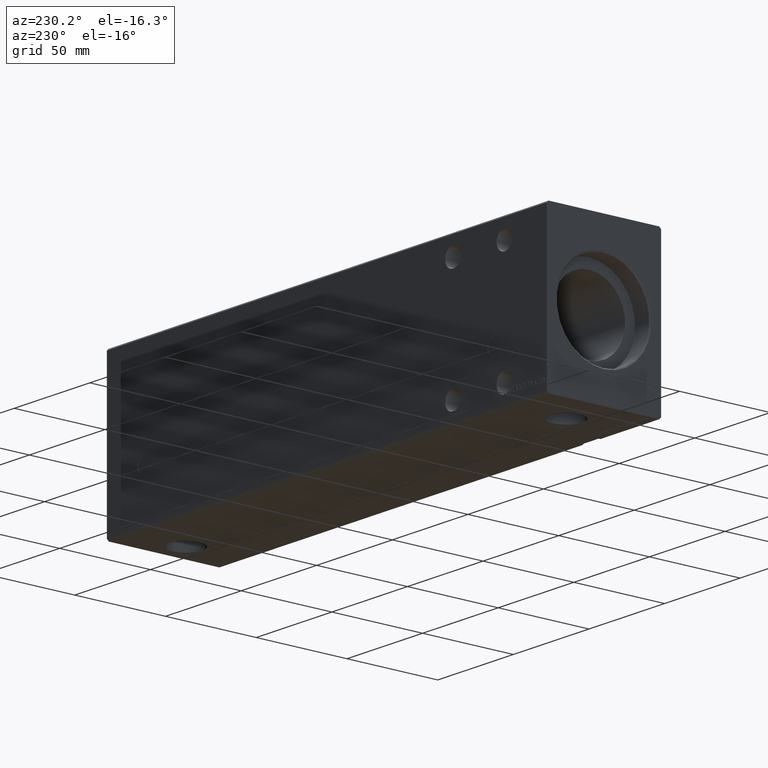
[diagram: clean part render]
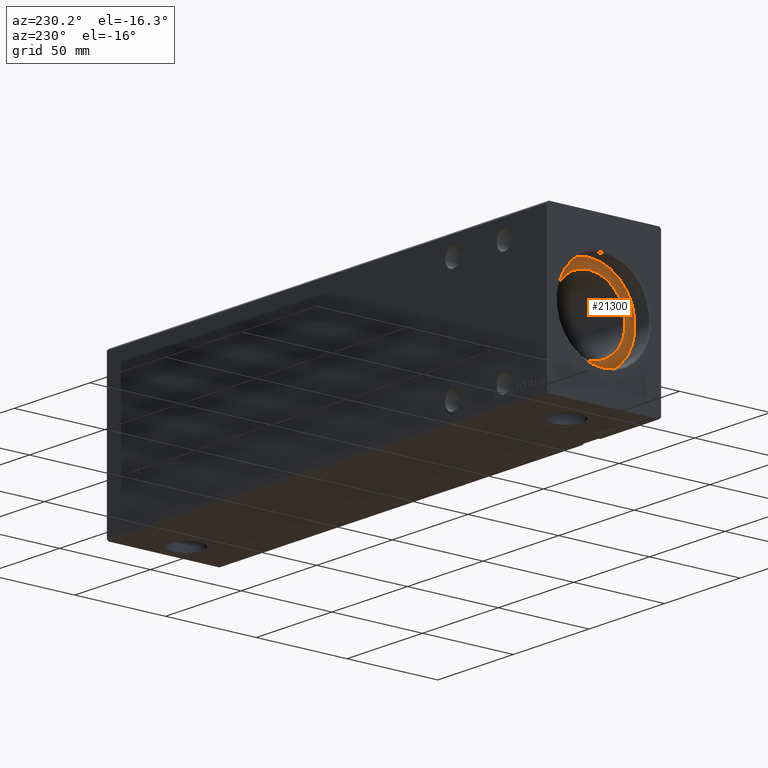
[diagram: same view with one face highlighted and labeled with its STEP entity id]
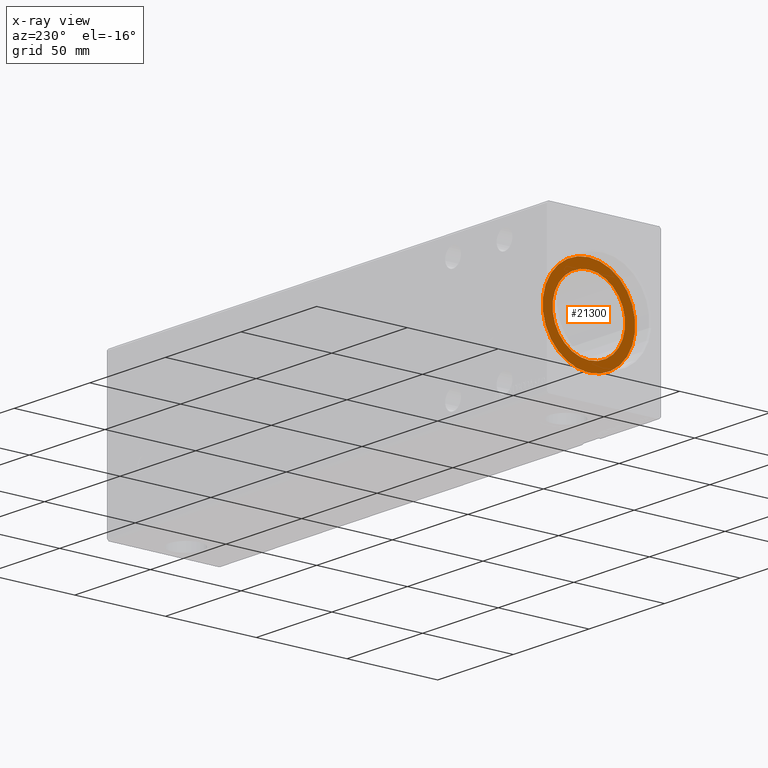
[diagram: x-ray of the same camera — body ghosted, the highlighted face saturated]
A machine part, auxiliary view. The second image highlights one B-rep face of the part: STEP entity #21300.
The next image is the same camera in x-ray: the body ghosted, the highlighted face saturated — about 0% of this face is hidden behind the body in this view.
In plain terms, the highlighted planar face has unit normal (-1, 0, 0).
Its self-contained STEP definition (entity closure, byte-faithful):
#396 = CARTESIAN_POINT ( 'NONE',  ( 10.00000000000000000, 3.122849337825750222E-15, -25.50000000000000000 ) ) ;
#622 = CARTESIAN_POINT ( 'NONE',  ( 10.00000000000000888, 0.000000000000000000, 20.00000000000000000 ) ) ;
#895 = DIRECTION ( 'NONE',  ( -1.000000000000000000, 0.000000000000000000, 0.000000000000000000 ) ) ;
#1317 = CIRCLE ( 'NONE', #1966, 25.50000000000000000 ) ;
#1690 = EDGE_CURVE ( 'NONE', #10067, #8087, #32352, .T. ) ;
#1966 = AXIS2_PLACEMENT_3D ( 'NONE', #13133, #895, #23253 ) ;
#2440 = CARTESIAN_POINT ( 'NONE',  ( 10.00000000000000000, 0.000000000000000000, 0.000000000000000000 ) ) ;
#2448 = EDGE_CURVE ( 'NONE', #12496, #40482, #35016, .T. ) ;
#4713 = CIRCLE ( 'NONE', #23888, 20.00000000000000000 ) ;
#4921 = EDGE_LOOP ( 'NONE', ( #35428, #13528 ) ) ;
#5194 = CARTESIAN_POINT ( 'NONE',  ( 10.00000000000000000, 0.000000000000000000, 25.50000000000000000 ) ) ;
#5714 = DIRECTION ( 'NONE',  ( 0.000000000000000000, 0.000000000000000000, 1.000000000000000000 ) ) ;
#8087 = VERTEX_POINT ( 'NONE', #622 ) ;
#9219 = DIRECTION ( 'NONE',  ( -1.000000000000000000, 0.000000000000000000, 0.000000000000000000 ) ) ;
#10067 = VERTEX_POINT ( 'NONE', #14042 ) ;
#11983 = FACE_OUTER_BOUND ( 'NONE', #4921, .T. ) ;
#12496 = VERTEX_POINT ( 'NONE', #5194 ) ;
#12730 = EDGE_CURVE ( 'NONE', #8087, #10067, #4713, .T. ) ;
#13133 = CARTESIAN_POINT ( 'NONE',  ( 10.00000000000000000, 0.000000000000000000, 0.000000000000000000 ) ) ;
#13528 = ORIENTED_EDGE ( 'NONE', *, *, #29887, .T. ) ;
#14042 = CARTESIAN_POINT ( 'NONE',  ( 10.00000000000000888, 2.449293598294706513E-15, -20.00000000000000000 ) ) ;
#15077 = DIRECTION ( 'NONE',  ( 0.000000000000000000, 0.000000000000000000, 1.000000000000000000 ) ) ;
#16316 = ORIENTED_EDGE ( 'NONE', *, *, #1690, .F. ) ;
#16964 = DIRECTION ( 'NONE',  ( -1.000000000000000000, 0.000000000000000000, 0.000000000000000000 ) ) ;
#20844 = DIRECTION ( 'NONE',  ( 0.000000000000000000, 0.000000000000000000, 1.000000000000000000 ) ) ;
#21300 = ADVANCED_FACE ( 'NONE', ( #28105, #11983 ), #30605, .T. ) ;
#21508 = EDGE_LOOP ( 'NONE', ( #36581, #16316 ) ) ;
#23253 = DIRECTION ( 'NONE',  ( 0.000000000000000000, 0.000000000000000000, 1.000000000000000000 ) ) ;
#23888 = AXIS2_PLACEMENT_3D ( 'NONE', #38713, #16964, #26079 ) ;
#26079 = DIRECTION ( 'NONE',  ( 0.000000000000000000, 0.000000000000000000, 1.000000000000000000 ) ) ;
#27050 = CARTESIAN_POINT ( 'NONE',  ( 10.00000000000000888, 0.000000000000000000, 0.000000000000000000 ) ) ;
#28105 = FACE_BOUND ( 'NONE', #21508, .T. ) ;
#29887 = EDGE_CURVE ( 'NONE', #40482, #12496, #1317, .T. ) ;
#29921 = AXIS2_PLACEMENT_3D ( 'NONE', #2440, #40733, #15077 ) ;
#30605 = PLANE ( 'NONE',  #29921 ) ;
#30756 = CARTESIAN_POINT ( 'NONE',  ( 10.00000000000000000, 0.000000000000000000, 0.000000000000000000 ) ) ;
#32352 = CIRCLE ( 'NONE', #37617, 20.00000000000000000 ) ;
#35016 = CIRCLE ( 'NONE', #37649, 25.50000000000000000 ) ;
#35428 = ORIENTED_EDGE ( 'NONE', *, *, #2448, .T. ) ;
#36581 = ORIENTED_EDGE ( 'NONE', *, *, #12730, .F. ) ;
#37617 = AXIS2_PLACEMENT_3D ( 'NONE', #27050, #39672, #20844 ) ;
#37649 = AXIS2_PLACEMENT_3D ( 'NONE', #30756, #9219, #5714 ) ;
#38713 = CARTESIAN_POINT ( 'NONE',  ( 10.00000000000000888, 0.000000000000000000, 0.000000000000000000 ) ) ;
#39672 = DIRECTION ( 'NONE',  ( -1.000000000000000000, 0.000000000000000000, 0.000000000000000000 ) ) ;
#40482 = VERTEX_POINT ( 'NONE', #396 ) ;
#40733 = DIRECTION ( 'NONE',  ( -1.000000000000000000, 0.000000000000000000, 0.000000000000000000 ) ) ;